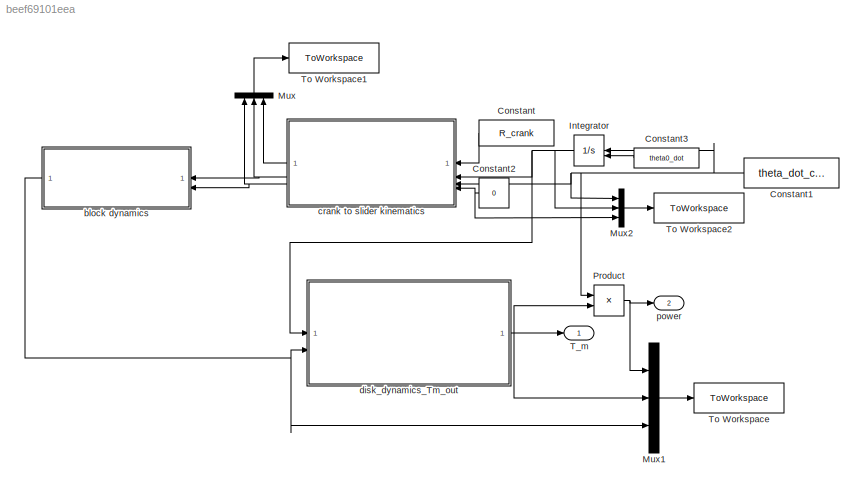
MODEL slx_beef69101eea
KIND model
CONFIG AbsTol = auto
CONFIG EnableMultiTasking = off
CONFIG FixedStep = 0.01
CONFIG MaxStep = auto
CONFIG MinStep = auto
CONFIG RelTol = 1e-3
CONFIG SampleTimeConstraint = Unconstrained
CONFIG SolverName = FixedStepAuto
CONFIG StartTime = 0.0
CONFIG StopTime = 10
BLOCK [Constant] Constant
  NameLocation = top
  Value = R_crank
BLOCK [Constant] Constant1
  NameLocation = top
  Value = theta_dot_const
BLOCK [Constant] Constant2
  NameLocation = top
  Value = 0
BLOCK [Constant] Constant3
  NameLocation = top
  Value = theta0_dot
BLOCK [Integrator] Integrator
  InitialConditionSource = external
  NameLocation = top
BLOCK [Mux] Mux
  DisplayOption = bar
  Inputs = 3
  NameLocation = right
BLOCK [Mux] Mux1
  DisplayOption = bar
  Inputs = 3
BLOCK [Mux] Mux2
  DisplayOption = bar
  Inputs = 3
BLOCK [Product] Product
BLOCK [Outport] T_m
BLOCK [ToWorkspace] To Workspace
  FixptAsFi = on
  MaxDataPoints = inf
  SampleTime = -1
  Save2DSignal = 2-D array (concatenate along first dimension)
  SaveFormat = Timeseries
  VariableName = KPI
BLOCK [ToWorkspace] To Workspace1
  FixptAsFi = on
  MaxDataPoints = inf
  SampleTime = -1
  SaveFormat = Timeseries
  VariableName = kinematics
BLOCK [ToWorkspace] To Workspace2
  FixptAsFi = on
  MaxDataPoints = inf
  SampleTime = -1
  SaveFormat = Timeseries
  VariableName = theta
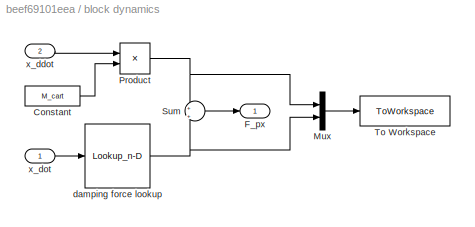
BLOCK [SubSystem] block dynamics
  NameLocation = top
BLOCK [Constant] block dynamics/Constant
  Value = M_cart
BLOCK [Outport] block dynamics/F_px
BLOCK [Mux] block dynamics/Mux
  DisplayOption = bar
  Inputs = 2
BLOCK [Product] block dynamics/Product
BLOCK [Sum] block dynamics/Sum
  Inputs = +|+
BLOCK [ToWorkspace] block dynamics/To Workspace
  FixptAsFi = on
  MaxDataPoints = inf
  SampleTime = -1
  SaveFormat = Timeseries
  VariableName = forces
BLOCK [Lookup_n-D] block dynamics/damping force lookup
  BreakpointsForDimension1 = vel_range
  InputPortMap = u0
  InternalRulePriority = Speed
  NumberOfTableDimensions = 1
  RndMeth = Simplest
  Table = damping_force
BLOCK [Inport] block dynamics/x_ddot
  Port = 2
BLOCK [Inport] block dynamics/x_dot
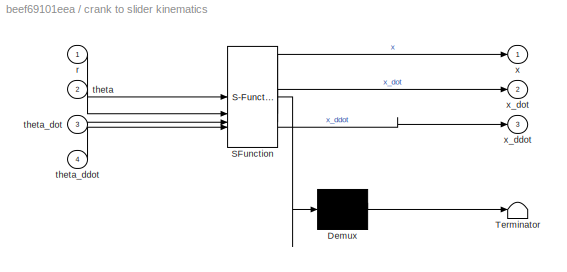
BLOCK [SubSystem] crank to slider kinematics
  ErrorFcn = Stateflow.Translate.translate
  NameLocation = top
  PermitHierarchicalResolution = ExplicitOnly
  SFBlockType = MATLAB Function
  TreatAsAtomicUnit = on
BLOCK [Demux] crank to slider kinematics/ Demux 
  Outputs = 1
BLOCK [S-Function] crank to slider kinematics/ SFunction 
  EnableBusSupport = on
  FunctionName = sf_sfun
  PortCounts = [4 4]
  SFcnIsStateOwnerBlock = off
  SFunctionDeploymentMode = off
  Tag = Stateflow S-Function 2
BLOCK [Terminator] crank to slider kinematics/ Terminator 
BLOCK [Inport] crank to slider kinematics/r
BLOCK [Inport] crank to slider kinematics/theta
  Port = 2
BLOCK [Inport] crank to slider kinematics/theta_ddot
  Port = 4
BLOCK [Inport] crank to slider kinematics/theta_dot
  Port = 3
BLOCK [Outport] crank to slider kinematics/x
BLOCK [Outport] crank to slider kinematics/x_ddot
  Port = 3
BLOCK [Outport] crank to slider kinematics/x_dot
  Port = 2
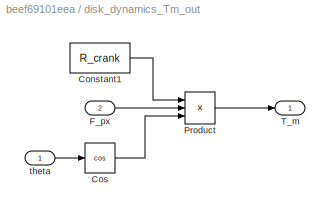
BLOCK [SubSystem] disk_dynamics_Tm_out
BLOCK [Constant] disk_dynamics_Tm_out/Constant1
  Value = R_crank
BLOCK [Trigonometry] disk_dynamics_Tm_out/Cos
  Operator = cos
BLOCK [Inport] disk_dynamics_Tm_out/F_px
  Port = 2
BLOCK [Product] disk_dynamics_Tm_out/Product
  Inputs = 3
BLOCK [Outport] disk_dynamics_Tm_out/T_m
BLOCK [Inport] disk_dynamics_Tm_out/theta
BLOCK [Outport] power
  Port = 2
NET Constant1:1 -> Integrator:1, Mux2:1, Product:1, crank to slider kinematics:3
NET Constant2:1 -> Mux2:3, crank to slider kinematics:4
LINE Constant3:1 -> Integrator:2
LINE Constant:1 -> crank to slider kinematics:1
NET Integrator:1 -> Mux2:2, crank to slider kinematics:2, disk_dynamics_Tm_out:1
LINE Mux1:1 -> To Workspace:1
LINE Mux2:1 -> To Workspace2:1
LINE Mux:1 -> To Workspace1:1
NET Product:1 -> Mux1:1, power:1
LINE block dynamics/Constant:1 -> block dynamics/Product:2
LINE block dynamics/Mux:1 -> block dynamics/To Workspace:1
NET block dynamics/Product:1 -> block dynamics/Mux:1, block dynamics/Sum:1
LINE block dynamics/Sum:1 -> block dynamics/F_px:1
NET block dynamics/damping force lookup:1 -> block dynamics/Mux:2, block dynamics/Sum:2
LINE block dynamics/x_ddot:1 -> block dynamics/Product:1
LINE block dynamics/x_dot:1 -> block dynamics/damping force lookup:1
NET block dynamics:1 -> Mux1:3, disk_dynamics_Tm_out:2
LINE crank to slider kinematics:1 -> Mux:3
NET crank to slider kinematics:2 -> Mux:2, block dynamics:1
NET crank to slider kinematics:3 -> Mux:1, block dynamics:2
LINE disk_dynamics_Tm_out/Constant1:1 -> disk_dynamics_Tm_out/Product:1
LINE disk_dynamics_Tm_out/Cos:1 -> disk_dynamics_Tm_out/Product:3
LINE disk_dynamics_Tm_out/F_px:1 -> disk_dynamics_Tm_out/Product:2
LINE disk_dynamics_Tm_out/Product:1 -> disk_dynamics_Tm_out/T_m:1
LINE disk_dynamics_Tm_out/theta:1 -> disk_dynamics_Tm_out/Cos:1
NET disk_dynamics_Tm_out:1 -> Mux1:2, Product:2, T_m:1
note: NET lines group one-source signal fan-out (src -> all destinations, sorted); 1:1 wires keep LINE
CHART crank to slider kinematics states=1 transitions=1
  STATE_LABEL 'eML_blk_kernel()'
  STATE_LABEL 'SCRIPT:\nfunction [x, x_dot, x_ddot] = kinematics(r, theta, theta_dot, theta_ddot)\n\nx = r * sin(theta);\nx_dot = r * theta_dot*cos(theta);\nx_ddot = r*(theta_ddot * cos(theta) - theta_dot^2 * sin(theta));\n\nend'
CHART  states=0 transitions=0
